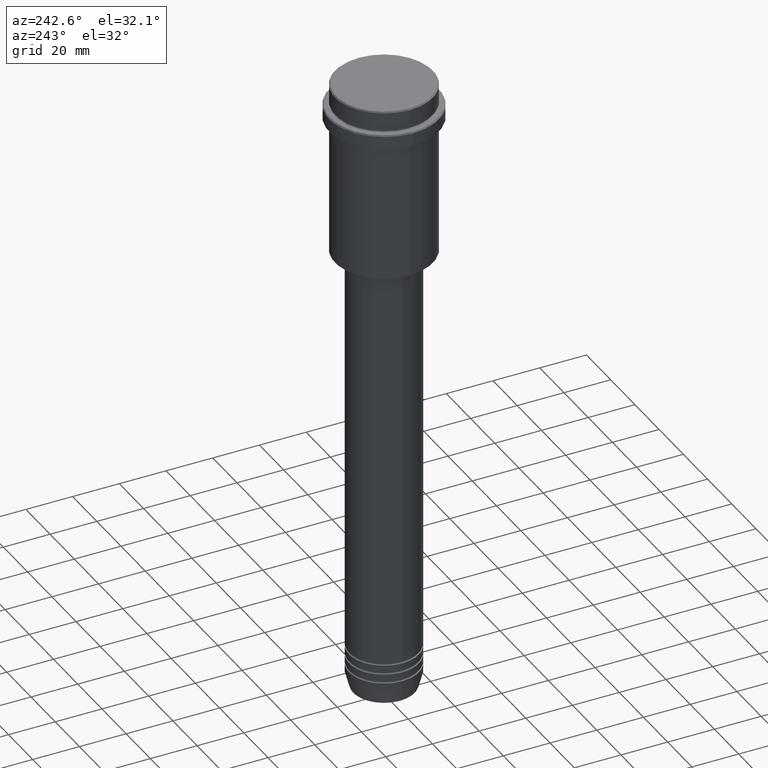
[diagram: clean part render]
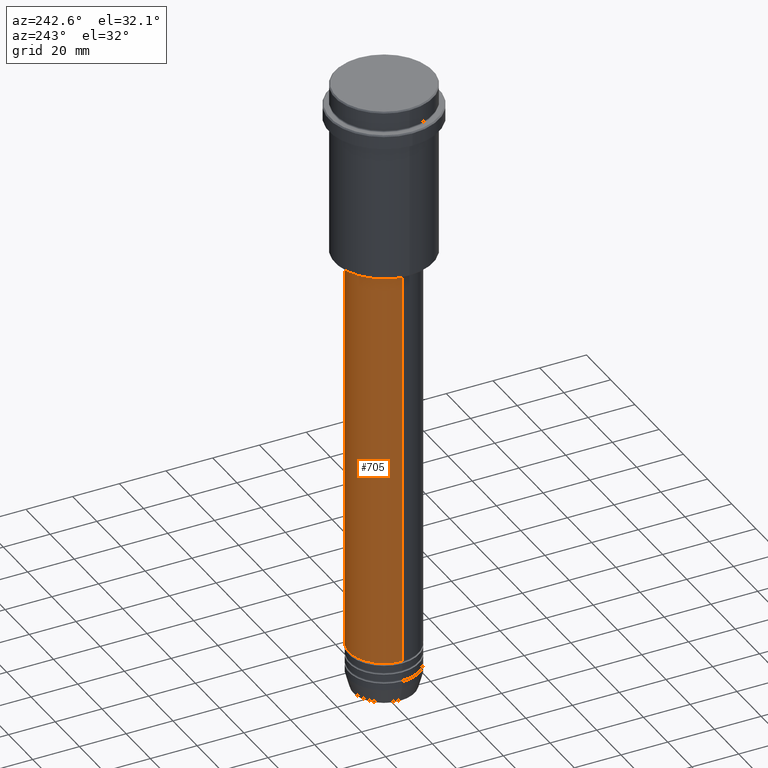
[diagram: same view with one face highlighted and labeled with its STEP entity id]
A machine part, auxiliary view. The second image highlights one B-rep face of the part: STEP entity #705.
In plain terms, the highlighted cylindrical surface (partial cylindrical patch) has radius 15 mm, axis along (-0, -0, 1).
Its self-contained STEP definition (entity closure, byte-faithful):
#51 = CIRCLE ( 'NONE', #908, 15.00000000000000000 ) ;
#72 = CIRCLE ( 'NONE', #863, 15.00000000000000000 ) ;
#85 = EDGE_LOOP ( 'NONE', ( #1142, #816, #245, #1268 ) ) ;
#141 = FACE_OUTER_BOUND ( 'NONE', #85, .T. ) ;
#158 = CARTESIAN_POINT ( 'NONE',  ( 0.000000000000000000, 0.000000000000000000, 0.000000000000000000 ) ) ;
#245 = ORIENTED_EDGE ( 'NONE', *, *, #808, .F. ) ;
#247 = CARTESIAN_POINT ( 'NONE',  ( 15.00000000000000000, 0.000000000000000000, 0.000000000000000000 ) ) ;
#266 = CARTESIAN_POINT ( 'NONE',  ( 0.000000000000000000, 0.000000000000000000, -76.00000000000001421 ) ) ;
#298 = DIRECTION ( 'NONE',  ( -0.000000000000000000, -0.000000000000000000, 1.000000000000000000 ) ) ;
#301 = AXIS2_PLACEMENT_3D ( 'NONE', #158, #1244, #481 ) ;
#303 = VECTOR ( 'NONE', #729, 1000.000000000000000 ) ;
#404 = CARTESIAN_POINT ( 'NONE',  ( -15.00000000000000000, 1.836970198721029589E-15, -250.9999999999998863 ) ) ;
#409 = VERTEX_POINT ( 'NONE', #943 ) ;
#466 = LINE ( 'NONE', #247, #467 ) ;
#467 = VECTOR ( 'NONE', #579, 1000.000000000000000 ) ;
#481 = DIRECTION ( 'NONE',  ( 1.000000000000000000, 0.000000000000000000, 0.000000000000000000 ) ) ;
#579 = DIRECTION ( 'NONE',  ( -0.000000000000000000, -0.000000000000000000, 1.000000000000000000 ) ) ;
#596 = DIRECTION ( 'NONE',  ( 1.000000000000000000, 0.000000000000000000, 0.000000000000000000 ) ) ;
#698 = DIRECTION ( 'NONE',  ( -0.000000000000000000, -0.000000000000000000, 1.000000000000000000 ) ) ;
#705 = ADVANCED_FACE ( 'NONE', ( #141 ), #815, .T. ) ;
#716 = CARTESIAN_POINT ( 'NONE',  ( 0.000000000000000000, 0.000000000000000000, -250.9999999999998863 ) ) ;
#729 = DIRECTION ( 'NONE',  ( -0.000000000000000000, -0.000000000000000000, 1.000000000000000000 ) ) ;
#773 = CARTESIAN_POINT ( 'NONE',  ( 15.00000000000000000, 0.000000000000000000, -250.9999999999998863 ) ) ;
#808 = EDGE_CURVE ( 'NONE', #409, #1375, #72, .T. ) ;
#815 = CYLINDRICAL_SURFACE ( 'NONE', #301, 15.00000000000000000 ) ;
#816 = ORIENTED_EDGE ( 'NONE', *, *, #858, .T. ) ;
#858 = EDGE_CURVE ( 'NONE', #1265, #1375, #1394, .T. ) ;
#863 = AXIS2_PLACEMENT_3D ( 'NONE', #266, #698, #596 ) ;
#908 = AXIS2_PLACEMENT_3D ( 'NONE', #716, #298, #1163 ) ;
#920 = EDGE_CURVE ( 'NONE', #1035, #1265, #51, .T. ) ;
#943 = CARTESIAN_POINT ( 'NONE',  ( 15.00000000000000000, 0.000000000000000000, -76.00000000000001421 ) ) ;
#1025 = CARTESIAN_POINT ( 'NONE',  ( -15.00000000000000000, 1.836970198721029589E-15, -76.00000000000001421 ) ) ;
#1035 = VERTEX_POINT ( 'NONE', #773 ) ;
#1142 = ORIENTED_EDGE ( 'NONE', *, *, #920, .T. ) ;
#1145 = EDGE_CURVE ( 'NONE', #1035, #409, #466, .T. ) ;
#1163 = DIRECTION ( 'NONE',  ( 1.000000000000000000, 0.000000000000000000, 0.000000000000000000 ) ) ;
#1168 = CARTESIAN_POINT ( 'NONE',  ( -15.00000000000000000, 1.836970198721029589E-15, 0.000000000000000000 ) ) ;
#1244 = DIRECTION ( 'NONE',  ( -0.000000000000000000, -0.000000000000000000, 1.000000000000000000 ) ) ;
#1265 = VERTEX_POINT ( 'NONE', #404 ) ;
#1268 = ORIENTED_EDGE ( 'NONE', *, *, #1145, .F. ) ;
#1375 = VERTEX_POINT ( 'NONE', #1025 ) ;
#1394 = LINE ( 'NONE', #1168, #303 ) ;